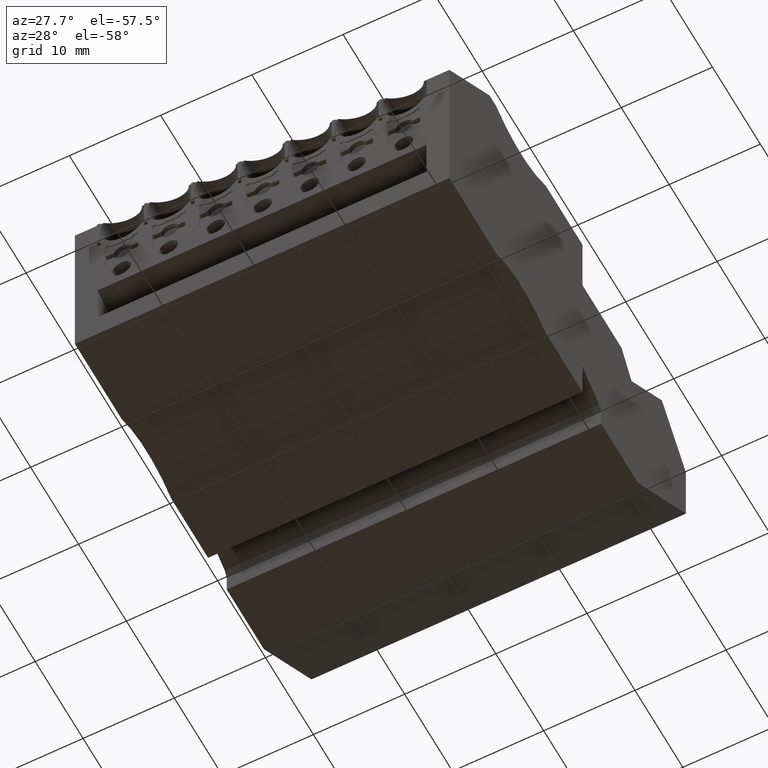
[diagram: clean part render]
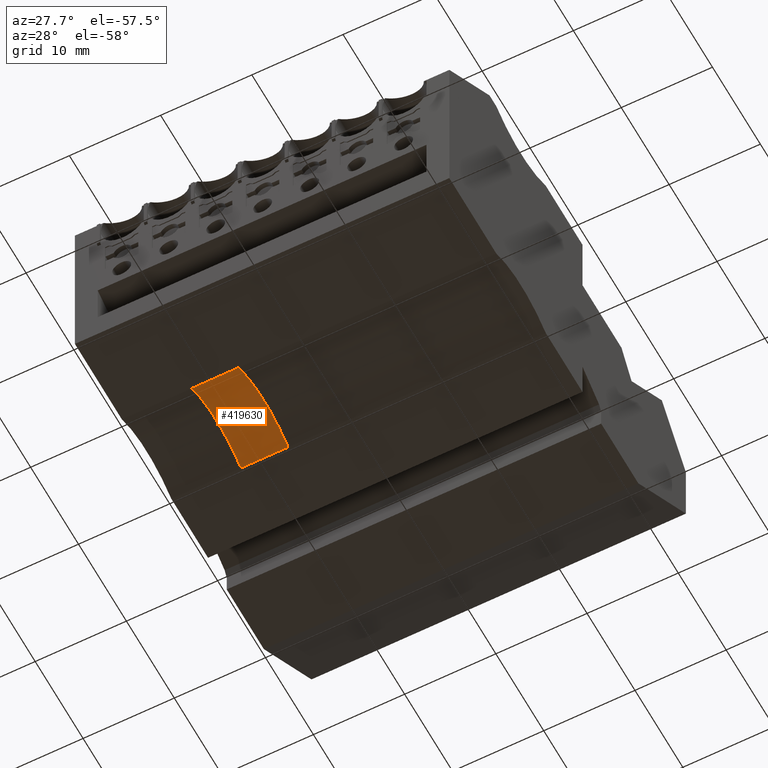
[diagram: same view with one face highlighted and labeled with its STEP entity id]
A machine part, auxiliary view. The second image highlights one B-rep face of the part: STEP entity #419630.
In plain terms, the highlighted cylindrical surface (partial cylindrical patch) has radius 10 mm, axis along (-1, -0, 0).
Its self-contained STEP definition (entity closure, byte-faithful):
#9540=CARTESIAN_POINT('',(430.260883768833,670.934347630881,
73.2699999996107));
#9550=VERTEX_POINT('',#9540);
#9580=CARTESIAN_POINT('',(430.260883772267,670.934347639395,
93.8699999926897));
#9590=DIRECTION('',(1.66699210889915E-10,4.90742846146349E-10,1.));
#9600=VECTOR('',#9590,1.);
#9610=LINE('',#9580,#9600);
#21540=CARTESIAN_POINT('',(435.425728112936,662.371381971997,
284.419999997027));
#21550=DIRECTION('',(-1.66699262872186E-10,-4.90742678260922E-10,-1.));
#21560=DIRECTION('',(1.,-1.20456367103123E-9,-1.66698994956591E-10));
#21570=AXIS2_PLACEMENT_3D('',#21540,#21550,#21560);
#21580=CYLINDRICAL_SURFACE('',#21570,10.);
#21740=CARTESIAN_POINT('',(440.590572493105,670.934347727425,
284.419999991964));
#21750=DIRECTION('',(-1.66699262872186E-10,-4.90742678260922E-10,-1.));
#21760=VECTOR('',#21750,1.);
#21770=LINE('',#21740,#21760);
#67540=CARTESIAN_POINT('',(440.590572458765,670.934347626332,
78.4199999991507));
#67550=VERTEX_POINT('',#67540);
#67560=CARTESIAN_POINT('',(440.59057246028,670.934347622374,
73.2699999991506));
#67570=VERTEX_POINT('',#67560);
#67580=EDGE_CURVE('',#67550,#67570,#21770,.T.);
#337910=CARTESIAN_POINT('',(430.260883769691,670.93434763388,
78.4199999996108));
#337920=VERTEX_POINT('',#337910);
#338030=CARTESIAN_POINT('',(435.425728078596,662.371381870904,
78.4200000042139));
#338040=DIRECTION('',(1.66699262872186E-10,4.90742678260922E-10,1.));
#338050=DIRECTION('',(1.,-1.20456367103123E-9,-1.66698994956591E-10));
#338060=AXIS2_PLACEMENT_3D('',#338030,#338040,#338050);
#338070=CIRCLE('',#338060,10.);
#338080=EDGE_CURVE('',#67550,#337920,#338070,.T.);
#393280=EDGE_CURVE('',#9550,#337920,#9610,.T.);
#419510=ORIENTED_EDGE('',*,*,#393280,.F.);
#419520=ORIENTED_EDGE('',*,*,#338080,.T.);
#419530=ORIENTED_EDGE('',*,*,#67580,.F.);
#419540=CARTESIAN_POINT('',(435.425728077738,662.371381868377,
73.2700000042139));
#419550=DIRECTION('',(1.66699262872186E-10,4.90742678260922E-10,1.));
#419560=DIRECTION('',(1.,-1.20456367103123E-9,-1.66698994956591E-10));
#419570=AXIS2_PLACEMENT_3D('',#419540,#419550,#419560);
#419580=CIRCLE('',#419570,10.);
#419590=EDGE_CURVE('',#67570,#9550,#419580,.T.);
#419600=ORIENTED_EDGE('',*,*,#419590,.F.);
#419610=EDGE_LOOP('',(#419600,#419530,#419520,#419510));
#419620=FACE_OUTER_BOUND('',#419610,.T.);
#419630=ADVANCED_FACE('',(#419620),#21580,.F.);